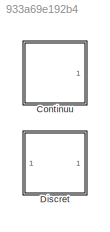
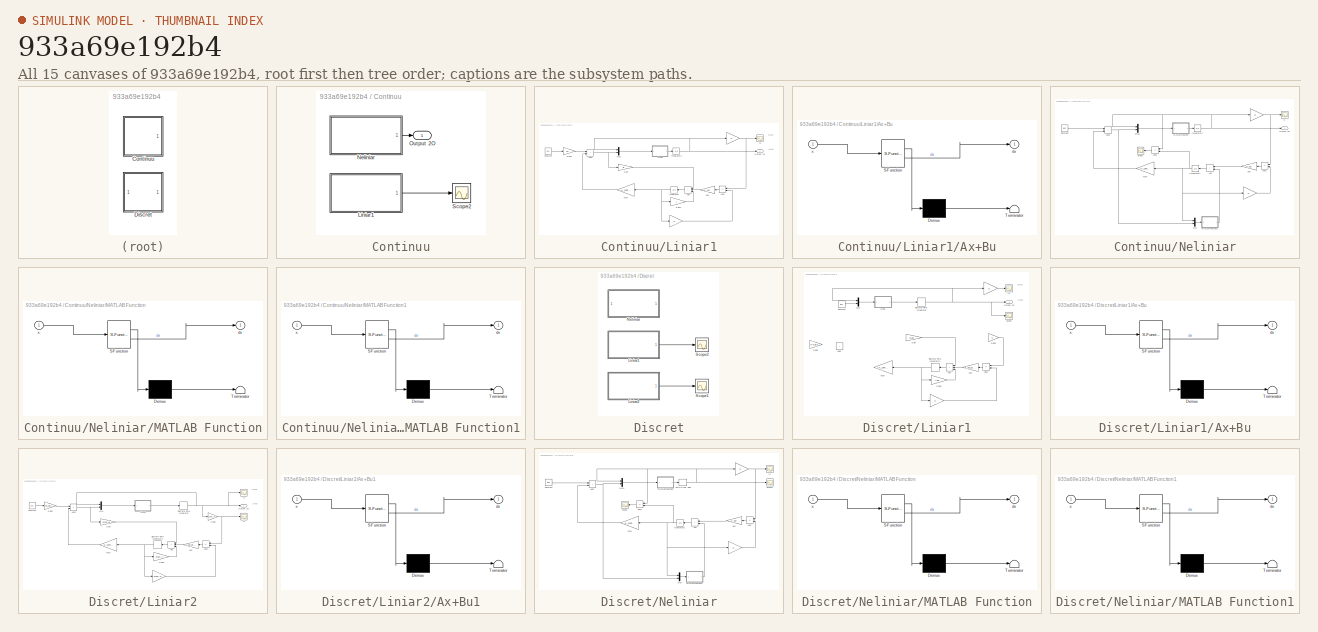
[diagram: thumbnail index - all 15 canvases of the model, root first then tree order]
MODEL slx_933a69e192b4
KIND model
CONFIG AbsTol = auto
CONFIG EnableMultiTasking = off
CONFIG FixedStep = auto
CONFIG MaxStep = auto
CONFIG MinStep = auto
CONFIG RelTol = 1e-3
CONFIG SampleTimeConstraint = Unconstrained
CONFIG SolverName = FixedStepAuto
CONFIG StartTime = 0.0
CONFIG StopTime = 10
BLOCK [SubSystem] Continuu
  Ports = [0, 1]
  RequestExecContextInheritance = off
BLOCK [SubSystem] Continuu/Liniar1
  Ports = [0, 1]
  RequestExecContextInheritance = off
BLOCK [Gain] Continuu/Liniar1/ 
  Gain = C
  Multiplication = Matrix(K*u) (u vector)
BLOCK [Gain] Continuu/Liniar1/  
  Gain = C
  Multiplication = Matrix(K*u) (u vector)
BLOCK [Sum] Continuu/Liniar1/Add
  IconShape = rectangular
  Inputs = +++
  Ports = [3, 1]
BLOCK [Sum] Continuu/Liniar1/Add1
  IconShape = rectangular
  Inputs = +-
  Ports = [2, 1]
BLOCK [Sum] Continuu/Liniar1/Add2
  IconShape = rectangular
  Ports = [2, 1]
BLOCK [SubSystem] Continuu/Liniar1/Ax+Bu
  ErrorFcn = Stateflow.Translate.translate
  PermitHierarchicalResolution = ExplicitOnly
  Ports = [1, 1]
  RequestExecContextInheritance = off
  SFBlockType = MATLAB Function
  TreatAsAtomicUnit = on
BLOCK [Demux] Continuu/Liniar1/Ax+Bu/ Demux 
  Outputs = 1
  Ports = [1, 1]
BLOCK [S-Function] Continuu/Liniar1/Ax+Bu/ SFunction 
  EnableBusSupport = on
  FunctionName = sf_sfun
  PortCounts = [1 2]
  Ports = [1, 2]
  SFcnIsStateOwnerBlock = off
  SFunctionDeploymentMode = off
  Tag = Stateflow S-Function 3
BLOCK [Terminator] Continuu/Liniar1/Ax+Bu/ Terminator 
BLOCK [Outport] Continuu/Liniar1/Ax+Bu/dx
BLOCK [Inport] Continuu/Liniar1/Ax+Bu/x
BLOCK [Constant] Continuu/Liniar1/Constant
  Value = [1,1]'
BLOCK [Gain] Continuu/Liniar1/Gain
  Gain = B
  Multiplication = Matrix(K*u) (u vector)
BLOCK [Gain] Continuu/Liniar1/Gain1
  Gain = Fx
  Multiplication = Matrix(K*u) (u vector)
BLOCK [Gain] Continuu/Liniar1/Gain3
  Gain = A
  Multiplication = Matrix(K*u) (u vector)
BLOCK [Integrator] Continuu/Liniar1/Integrator
  InitialCondition = [0,0,0,0]'
  Ports = [1, 1]
BLOCK [Integrator] Continuu/Liniar1/Integrator1
  InitialCondition = [0.1,0.5,0.25,-0.5]'
  Ports = [1, 1]
BLOCK [Gain] Continuu/Liniar1/Kcon
  Gain = -K_control
  Multiplication = Matrix(K*u) (u vector)
BLOCK [Gain] Continuu/Liniar1/Kes
  Gain = K_es'
  Multiplication = Matrix(K*u) (u vector)
BLOCK [Mux] Continuu/Liniar1/Mux
  DisplayOption = bar
  Inputs = 2
  Ports = [2, 1]
BLOCK [Outport] Continuu/Liniar1/Output 2O
BLOCK [Scope] Continuu/Liniar1/y1
  Floating = off
  NumInputPorts = 1
  Ports = [1]
  ScopeSpecificationString = Simulink.scopes.TimeScopeBlockCfg('CurrentConfiguration', extmgr.ConfigurationSet(extmgr.Configuration('Core','General UI',true),extmgr.Configuration('Core','Source UI',true),extmgr.Configuration('Sources','WiredSimulink',true,'DataLoggingVariableName','ScopeData1'),extmgr.Configuration('Visuals','Time Domain',true,'SerializedDisplays',{struct('MinYLimReal','-82.78247','MaxYLimReal','746.04226','Y...<+1451ch>
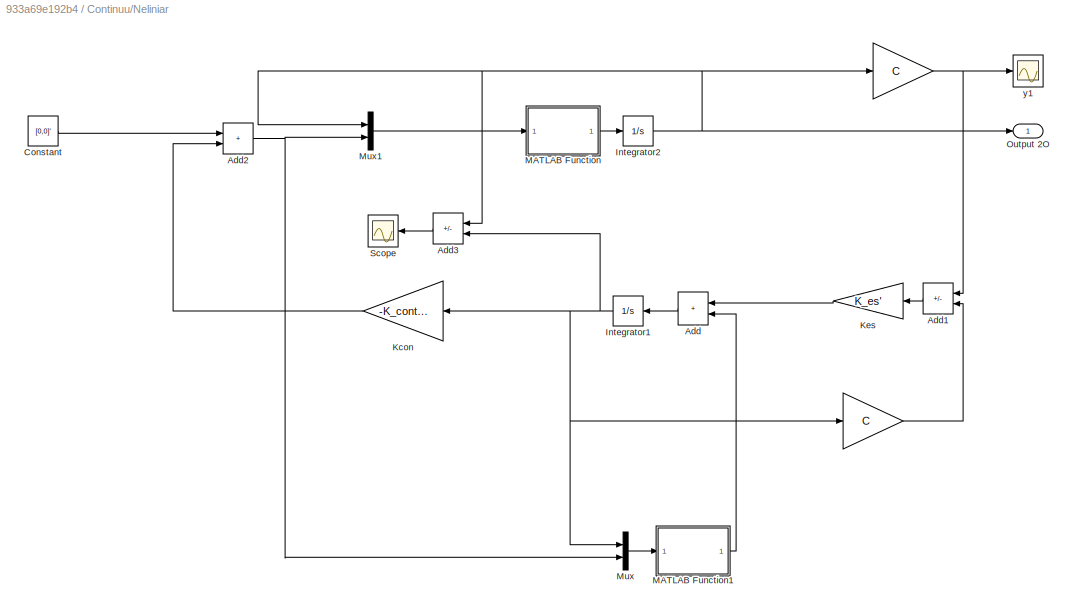
BLOCK [SubSystem] Continuu/Neliniar
  Ports = [0, 1]
  RequestExecContextInheritance = off
BLOCK [Gain] Continuu/Neliniar/ 
  Gain = C
  Multiplication = Matrix(K*u) (u vector)
BLOCK [Gain] Continuu/Neliniar/  
  Gain = C
  Multiplication = Matrix(K*u) (u vector)
BLOCK [Sum] Continuu/Neliniar/Add
  IconShape = rectangular
  Ports = [2, 1]
BLOCK [Sum] Continuu/Neliniar/Add1
  IconShape = rectangular
  Inputs = +-
  Ports = [2, 1]
BLOCK [Sum] Continuu/Neliniar/Add2
  IconShape = rectangular
  Ports = [2, 1]
BLOCK [Sum] Continuu/Neliniar/Add3
  IconShape = rectangular
  Inputs = +-
  Ports = [2, 1]
BLOCK [Constant] Continuu/Neliniar/Constant
  Value = [0,0]'
BLOCK [Integrator] Continuu/Neliniar/Integrator1
  InitialCondition = [0,0,0,0]'
  Ports = [1, 1]
BLOCK [Integrator] Continuu/Neliniar/Integrator2
  InitialCondition = [0.1,0.5,0.25,-0.5]'*1e-10
  Ports = [1, 1]
BLOCK [Gain] Continuu/Neliniar/Kcon
  Gain = -K_control
  Multiplication = Matrix(K*u) (u vector)
BLOCK [Gain] Continuu/Neliniar/Kes
  Gain = K_es'
  Multiplication = Matrix(K*u) (u vector)
BLOCK [SubSystem] Continuu/Neliniar/MATLAB Function
  ErrorFcn = Stateflow.Translate.translate
  PermitHierarchicalResolution = ExplicitOnly
  Ports = [1, 1]
  RequestExecContextInheritance = off
  SFBlockType = MATLAB Function
  TreatAsAtomicUnit = on
BLOCK [Demux] Continuu/Neliniar/MATLAB Function/ Demux 
  Outputs = 1
  Ports = [1, 1]
BLOCK [S-Function] Continuu/Neliniar/MATLAB Function/ SFunction 
  EnableBusSupport = on
  FunctionName = sf_sfun
  PortCounts = [1 2]
  Ports = [1, 2]
  SFcnIsStateOwnerBlock = off
  SFunctionDeploymentMode = off
  Tag = Stateflow S-Function 2
BLOCK [Terminator] Continuu/Neliniar/MATLAB Function/ Terminator 
BLOCK [Outport] Continuu/Neliniar/MATLAB Function/dx
BLOCK [Inport] Continuu/Neliniar/MATLAB Function/x
BLOCK [SubSystem] Continuu/Neliniar/MATLAB Function1
  ErrorFcn = Stateflow.Translate.translate
  PermitHierarchicalResolution = ExplicitOnly
  Ports = [1, 1]
  RequestExecContextInheritance = off
  SFBlockType = MATLAB Function
  TreatAsAtomicUnit = on
BLOCK [Demux] Continuu/Neliniar/MATLAB Function1/ Demux 
  Outputs = 1
  Ports = [1, 1]
BLOCK [S-Function] Continuu/Neliniar/MATLAB Function1/ SFunction 
  EnableBusSupport = on
  FunctionName = sf_sfun
  PortCounts = [1 2]
  Ports = [1, 2]
  SFcnIsStateOwnerBlock = off
  SFunctionDeploymentMode = off
  Tag = Stateflow S-Function 1
BLOCK [Terminator] Continuu/Neliniar/MATLAB Function1/ Terminator 
BLOCK [Outport] Continuu/Neliniar/MATLAB Function1/dx
BLOCK [Inport] Continuu/Neliniar/MATLAB Function1/x
BLOCK [Mux] Continuu/Neliniar/Mux
  DisplayOption = bar
  Inputs = 2
  Ports = [2, 1]
BLOCK [Mux] Continuu/Neliniar/Mux1
  DisplayOption = bar
  Inputs = 2
  Ports = [2, 1]
BLOCK [Outport] Continuu/Neliniar/Output 2O
BLOCK [Scope] Continuu/Neliniar/Scope
  Floating = off
  NumInputPorts = 1
  Ports = [1]
  ScopeSpecificationString = Simulink.scopes.TimeScopeBlockCfg('CurrentConfiguration', extmgr.ConfigurationSet(extmgr.Configuration('Core','General UI',true),extmgr.Configuration('Core','Source UI',true),extmgr.Configuration('Sources','WiredSimulink',true,'DataLoggingVariableName','ScopeData2'),extmgr.Configuration('Visuals','Time Domain',true,'SerializedDisplays',{struct('MinYLimReal','-0.000000014','MaxYLimReal','0.00000000...<+1453ch>
BLOCK [Scope] Continuu/Neliniar/y1
  Floating = off
  NumInputPorts = 1
  Ports = [1]
  ScopeSpecificationString = Simulink.scopes.TimeScopeBlockCfg('CurrentConfiguration', extmgr.ConfigurationSet(extmgr.Configuration('Core','General UI',true),extmgr.Configuration('Core','Source UI',true),extmgr.Configuration('Sources','WiredSimulink',true,'DataLoggingVariableName','ScopeData1'),extmgr.Configuration('Visuals','Time Domain',true,'SerializedDisplays',{struct('MinYLimReal','-0.000000008','MaxYLimReal','0.00000007...<+1475ch>
BLOCK [Outport] Continuu/Output 2O
BLOCK [Scope] Continuu/Scope2
  Floating = off
  NumInputPorts = 1
  Ports = [1]
  ScopeSpecificationString = Simulink.scopes.TimeScopeBlockCfg('CurrentConfiguration', extmgr.ConfigurationSet(extmgr.Configuration('Core','General UI',true),extmgr.Configuration('Core','Source UI',true),extmgr.Configuration('Sources','WiredSimulink',true,'DataLoggingVariableName','ScopeData2'),extmgr.Configuration('Visuals','Time Domain',true,'SerializedDisplays',{struct('MinYLimReal','-485.9879','MaxYLimReal','1798.11806','...<+1492ch>
BLOCK [SubSystem] Discret
  Ports = []
  RequestExecContextInheritance = off
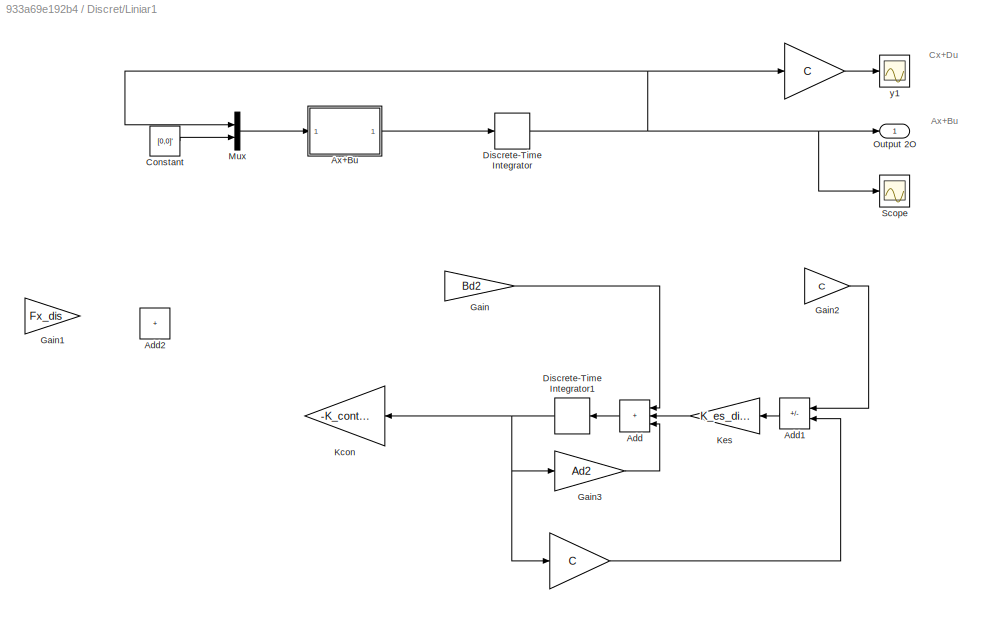
BLOCK [SubSystem] Discret/Liniar1
  Ports = [0, 1]
  RequestExecContextInheritance = off
BLOCK [Gain] Discret/Liniar1/ 
  Gain = C
  Multiplication = Matrix(K*u) (u vector)
BLOCK [Gain] Discret/Liniar1/  
  Gain = C
  Multiplication = Matrix(K*u) (u vector)
BLOCK [Sum] Discret/Liniar1/Add
  IconShape = rectangular
  Inputs = +++
  Ports = [3, 1]
BLOCK [Sum] Discret/Liniar1/Add1
  IconShape = rectangular
  Inputs = +-
  Ports = [2, 1]
BLOCK [Sum] Discret/Liniar1/Add2
  IconShape = rectangular
  Ports = [2, 1]
BLOCK [SubSystem] Discret/Liniar1/Ax+Bu
  ErrorFcn = Stateflow.Translate.translate
  PermitHierarchicalResolution = ExplicitOnly
  Ports = [1, 1]
  RequestExecContextInheritance = off
  SFBlockType = MATLAB Function
  TreatAsAtomicUnit = on
BLOCK [Demux] Discret/Liniar1/Ax+Bu/ Demux 
  Outputs = 1
  Ports = [1, 1]
BLOCK [S-Function] Discret/Liniar1/Ax+Bu/ SFunction 
  EnableBusSupport = on
  FunctionName = sf_sfun
  PortCounts = [1 2]
  Ports = [1, 2]
  SFcnIsStateOwnerBlock = off
  SFunctionDeploymentMode = off
  Tag = Stateflow S-Function 4
BLOCK [Terminator] Discret/Liniar1/Ax+Bu/ Terminator 
BLOCK [Outport] Discret/Liniar1/Ax+Bu/dx
BLOCK [Inport] Discret/Liniar1/Ax+Bu/x
BLOCK [Constant] Discret/Liniar1/Constant
  SampleTime = Te
  Value = [0,0]'
BLOCK [DiscreteIntegrator] Discret/Liniar1/Discrete-Time Integrator
  ICPrevOutput = DiscIntNeverNeededParam
  ICPrevScaledInput = DiscIntNeverNeededParam
  InitialCondition = [1 0.5 -0.2 -1]'
  InitialConditionSetting = Auto
  IntegratorMethod = Integration: Backward Euler
  Ports = [1, 1]
  SampleTime = Te
BLOCK [DiscreteIntegrator] Discret/Liniar1/Discrete-Time Integrator1
  ICPrevOutput = DiscIntNeverNeededParam
  ICPrevScaledInput = DiscIntNeverNeededParam
  InitialCondition = [0 0 0 0]'
  InitialConditionSetting = Auto
  NameLocation = top
  Ports = [1, 1]
  SampleTime = Te
BLOCK [Gain] Discret/Liniar1/Gain
  Gain = Bd2
  Multiplication = Matrix(K*u) (u vector)
BLOCK [Gain] Discret/Liniar1/Gain1
  Gain = Fx_dis
  Multiplication = Matrix(K*u) (u vector)
BLOCK [Gain] Discret/Liniar1/Gain2
  Gain = C
  Multiplication = Matrix(K*u) (u vector)
BLOCK [Gain] Discret/Liniar1/Gain3
  Gain = Ad2
  Multiplication = Matrix(K*u) (u vector)
BLOCK [Gain] Discret/Liniar1/Kcon
  Gain = -K_control_dis2
  Multiplication = Matrix(K*u) (u vector)
BLOCK [Gain] Discret/Liniar1/Kes
  Gain = K_es_dis2'
  Multiplication = Matrix(K*u) (u vector)
BLOCK [Mux] Discret/Liniar1/Mux
  DisplayOption = bar
  Inputs = 2
  Ports = [2, 1]
BLOCK [Outport] Discret/Liniar1/Output 2O
BLOCK [Scope] Discret/Liniar1/Scope
  Floating = off
  NumInputPorts = 1
  Ports = [1]
  ScopeSpecificationString = Simulink.scopes.TimeScopeBlockCfg('CurrentConfiguration', extmgr.ConfigurationSet(extmgr.Configuration('Core','General UI',true),extmgr.Configuration('Core','Source UI',true),extmgr.Configuration('Sources','WiredSimulink',true,'DataLoggingVariableName','ScopeData1'),extmgr.Configuration('Visuals','Time Domain',true,'SerializedDisplays',{struct('MinYLimReal','-2667.74893','MaxYLimReal','5147.21872'...<+1565ch>
BLOCK [Scope] Discret/Liniar1/y1
  Floating = off
  NumInputPorts = 1
  Ports = [1]
  ScopeSpecificationString = Simulink.scopes.TimeScopeBlockCfg('CurrentConfiguration', extmgr.ConfigurationSet(extmgr.Configuration('Core','General UI',true),extmgr.Configuration('Core','Source UI',true),extmgr.Configuration('Sources','WiredSimulink',true,'DataLoggingVariableName','ScopeData1'),extmgr.Configuration('Visuals','Time Domain',true,'SerializedDisplays',{struct('MinYLimReal','-18.63753','MaxYLimReal','60.95477','YL...<+1450ch>
BLOCK [SubSystem] Discret/Liniar2
  Ports = [0, 1]
  RequestExecContextInheritance = off
BLOCK [Gain] Discret/Liniar2/ 
  Gain = sysD.C
  Multiplication = Matrix(K*u) (u vector)
BLOCK [Sum] Discret/Liniar2/Add
  IconShape = rectangular
  Inputs = +++
  Ports = [3, 1]
BLOCK [Sum] Discret/Liniar2/Add1
  IconShape = rectangular
  Inputs = +-
  Ports = [2, 1]
BLOCK [Sum] Discret/Liniar2/Add3
  IconShape = rectangular
  Ports = [2, 1]
BLOCK [SubSystem] Discret/Liniar2/Ax+Bu1
  ErrorFcn = Stateflow.Translate.translate
  PermitHierarchicalResolution = ExplicitOnly
  Ports = [1, 1]
  RequestExecContextInheritance = off
  SFBlockType = MATLAB Function
  TreatAsAtomicUnit = on
BLOCK [Demux] Discret/Liniar2/Ax+Bu1/ Demux 
  Outputs = 1
  Ports = [1, 1]
BLOCK [S-Function] Discret/Liniar2/Ax+Bu1/ SFunction 
  EnableBusSupport = on
  FunctionName = sf_sfun
  PortCounts = [1 2]
  Ports = [1, 2]
  SFcnIsStateOwnerBlock = off
  SFunctionDeploymentMode = off
  Tag = Stateflow S-Function 8
BLOCK [Terminator] Discret/Liniar2/Ax+Bu1/ Terminator 
BLOCK [Outport] Discret/Liniar2/Ax+Bu1/dx
BLOCK [Inport] Discret/Liniar2/Ax+Bu1/x
BLOCK [Constant] Discret/Liniar2/Constant
  SampleTime = Te
  Value = [1,1]'
BLOCK [DiscreteIntegrator] Discret/Liniar2/Discrete-Time Integrator
  ICPrevOutput = DiscIntNeverNeededParam
  ICPrevScaledInput = DiscIntNeverNeededParam
  InitialCondition = [0.3 0.1 -0.1 -0.2]'
  InitialConditionSetting = Auto
  Ports = [1, 1]
  SampleTime = Te
BLOCK [DiscreteIntegrator] Discret/Liniar2/Discrete-Time Integrator1
  ICPrevOutput = DiscIntNeverNeededParam
  ICPrevScaledInput = DiscIntNeverNeededParam
  InitialCondition = [0 0 0 0]'
  InitialConditionSetting = Auto
  NameLocation = top
  Ports = [1, 1]
  SampleTime = Te
BLOCK [Gain] Discret/Liniar2/Gain
  Gain = sysD.B
  Multiplication = Matrix(K*u) (u vector)
BLOCK [Gain] Discret/Liniar2/Gain1
  Gain = Fx_dis
  Multiplication = Matrix(K*u) (u vector)
BLOCK [Gain] Discret/Liniar2/Gain2
  Gain = sysD.C
  Multiplication = Matrix(K*u) (u vector)
BLOCK [Gain] Discret/Liniar2/Gain3
  Gain = sysD.A
  Multiplication = Matrix(K*u) (u vector)
BLOCK [Gain] Discret/Liniar2/Kcon
  Gain = -K_control_dis
  Multiplication = Matrix(K*u) (u vector)
BLOCK [Gain] Discret/Liniar2/Kes
  Gain = K_es_dis'
  Multiplication = Matrix(K*u) (u vector)
BLOCK [Mux] Discret/Liniar2/Mux
  DisplayOption = bar
  Inputs = 2
  Ports = [2, 1]
BLOCK [Outport] Discret/Liniar2/Output 2O
BLOCK [Scope] Discret/Liniar2/y1
  Floating = off
  NumInputPorts = 1
  Ports = [1]
  ScopeSpecificationString = Simulink.scopes.TimeScopeBlockCfg('CurrentConfiguration', extmgr.ConfigurationSet(extmgr.Configuration('Core','General UI',true),extmgr.Configuration('Core','Source UI',true),extmgr.Configuration('Sources','WiredSimulink',true,'DataLoggingVariableName','ScopeData1'),extmgr.Configuration('Visuals','Time Domain',true,'SerializedDisplays',{struct('MinYLimReal','-207.85808','MaxYLimReal','1868.72272',...<+1562ch>
BLOCK [Scope] Discret/Liniar2/y2
  Floating = off
  NumInputPorts = 1
  Ports = [1]
  ScopeSpecificationString = Simulink.scopes.TimeScopeBlockCfg('CurrentConfiguration', extmgr.ConfigurationSet(extmgr.Configuration('Core','General UI',true),extmgr.Configuration('Core','Source UI',true),extmgr.Configuration('Sources','WiredSimulink',true,'DataLoggingVariableName','ScopeData3'),extmgr.Configuration('Visuals','Time Domain',true,'SerializedDisplays',{struct('MinYLimReal','-0.54132','MaxYLimReal','3.76219','YLab...<+1447ch>
BLOCK [SubSystem] Discret/Neliniar
  Ports = []
  RequestExecContextInheritance = off
BLOCK [Gain] Discret/Neliniar/ 
  Gain = C
  Multiplication = Matrix(K*u) (u vector)
BLOCK [Gain] Discret/Neliniar/  
  Gain = C
  Multiplication = Matrix(K*u) (u vector)
BLOCK [Sum] Discret/Neliniar/Add
  IconShape = rectangular
  Ports = [2, 1]
BLOCK [Sum] Discret/Neliniar/Add1
  IconShape = rectangular
  Inputs = +-
  Ports = [2, 1]
BLOCK [Sum] Discret/Neliniar/Add2
  IconShape = rectangular
  Ports = [2, 1]
BLOCK [Sum] Discret/Neliniar/Add3
  IconShape = rectangular
  Inputs = +-
  Ports = [2, 1]
BLOCK [Constant] Discret/Neliniar/Constant
  Value = [0,0]'
BLOCK [Integrator] Discret/Neliniar/Integrator1
  InitialCondition = [0,0,0,0]'
  Ports = [1, 1]
BLOCK [Gain] Discret/Neliniar/Kcon
  Gain = -K_control
  Multiplication = Matrix(K*u) (u vector)
BLOCK [Gain] Discret/Neliniar/Kes
  Gain = K_es'
  Multiplication = Matrix(K*u) (u vector)
BLOCK [SubSystem] Discret/Neliniar/MATLAB Function
  ErrorFcn = Stateflow.Translate.translate
  PermitHierarchicalResolution = ExplicitOnly
  Ports = [1, 1]
  RequestExecContextInheritance = off
  SFBlockType = MATLAB Function
  TreatAsAtomicUnit = on
BLOCK [Demux] Discret/Neliniar/MATLAB Function/ Demux 
  Outputs = 1
  Ports = [1, 1]
BLOCK [S-Function] Discret/Neliniar/MATLAB Function/ SFunction 
  EnableBusSupport = on
  FunctionName = sf_sfun
  PortCounts = [1 2]
  Ports = [1, 2]
  SFcnIsStateOwnerBlock = off
  SFunctionDeploymentMode = off
  Tag = Stateflow S-Function 5
BLOCK [Terminator] Discret/Neliniar/MATLAB Function/ Terminator 
BLOCK [Outport] Discret/Neliniar/MATLAB Function/dx
BLOCK [Inport] Discret/Neliniar/MATLAB Function/x
BLOCK [SubSystem] Discret/Neliniar/MATLAB Function1
  ErrorFcn = Stateflow.Translate.translate
  PermitHierarchicalResolution = ExplicitOnly
  Ports = [1, 1]
  RequestExecContextInheritance = off
  SFBlockType = MATLAB Function
  TreatAsAtomicUnit = on
BLOCK [Demux] Discret/Neliniar/MATLAB Function1/ Demux 
  Outputs = 1
  Ports = [1, 1]
BLOCK [S-Function] Discret/Neliniar/MATLAB Function1/ SFunction 
  EnableBusSupport = on
  FunctionName = sf_sfun
  PortCounts = [1 2]
  Ports = [1, 2]
  SFcnIsStateOwnerBlock = off
  SFunctionDeploymentMode = off
  Tag = Stateflow S-Function 6
BLOCK [Terminator] Discret/Neliniar/MATLAB Function1/ Terminator 
BLOCK [Outport] Discret/Neliniar/MATLAB Function1/dx
BLOCK [Inport] Discret/Neliniar/MATLAB Function1/x
BLOCK [Mux] Discret/Neliniar/Mux
  DisplayOption = bar
  Inputs = 2
  Ports = [2, 1]
BLOCK [Mux] Discret/Neliniar/Mux1
  DisplayOption = bar
  Inputs = 2
  Ports = [2, 1]
BLOCK [Scope] Discret/Neliniar/Scope
  Floating = off
  NumInputPorts = 1
  Ports = [1]
  ScopeSpecificationString = Simulink.scopes.TimeScopeBlockCfg('CurrentConfiguration', extmgr.ConfigurationSet(extmgr.Configuration('Core','General UI',true),extmgr.Configuration('Core','Source UI',true),extmgr.Configuration('Sources','WiredSimulink',true,'DataLoggingVariableName','ScopeData2'),extmgr.Configuration('Visuals','Time Domain',true,'SerializedDisplays',{struct('MinYLimReal','-0.000000014','MaxYLimReal','0.00000000...<+1453ch>
BLOCK [Scope] Discret/Neliniar/Scope1
  Floating = off
  NumInputPorts = 1
  Ports = [1]
  ScopeSpecificationString = Simulink.scopes.TimeScopeBlockCfg('CurrentConfiguration', extmgr.ConfigurationSet(extmgr.Configuration('Core','General UI',true),extmgr.Configuration('Core','Source UI',true),extmgr.Configuration('Sources','WiredSimulink',true,'DataLoggingVariableName','ScopeData1','DataLoggingSaveFormat','Array','DataLoggingLimitDataPoints',true,'DataLoggingDecimation','1'),extmgr.Configuration('Visuals','Time Do...<+868ch>
BLOCK [ZeroOrderHold] Discret/Neliniar/Zero-Order Hold
  SampleTime = -1
BLOCK [Scope] Discret/Neliniar/y1
  Floating = off
  NumInputPorts = 1
  Ports = [1]
  ScopeSpecificationString = Simulink.scopes.TimeScopeBlockCfg('CurrentConfiguration', extmgr.ConfigurationSet(extmgr.Configuration('Core','General UI',true),extmgr.Configuration('Core','Source UI',true),extmgr.Configuration('Sources','WiredSimulink',true,'DataLoggingVariableName','ScopeData1'),extmgr.Configuration('Visuals','Time Domain',true,'SerializedDisplays',{struct('MinYLimReal','-0.000000008','MaxYLimReal','0.00000007...<+1475ch>
BLOCK [Scope] Discret/Scope1
  Floating = off
  NumInputPorts = 1
  Ports = [1]
  ScopeSpecificationString = Simulink.scopes.TimeScopeBlockCfg('CurrentConfiguration', extmgr.ConfigurationSet(extmgr.Configuration('Core','General UI',true),extmgr.Configuration('Core','Source UI',true),extmgr.Configuration('Sources','WiredSimulink',true,'DataLoggingVariableName','ScopeData2'),extmgr.Configuration('Visuals','Time Domain',true,'SerializedDisplays',{struct('MinYLimReal','-0.36328','MaxYLimReal','0.37388','YLab...<+1475ch>
BLOCK [Scope] Discret/Scope2
  Floating = off
  NumInputPorts = 1
  Ports = [1]
  ScopeSpecificationString = Simulink.scopes.TimeScopeBlockCfg('CurrentConfiguration', extmgr.ConfigurationSet(extmgr.Configuration('Core','General UI',true),extmgr.Configuration('Core','Source UI',true),extmgr.Configuration('Sources','WiredSimulink',true,'DataLoggingVariableName','ScopeData2'),extmgr.Configuration('Visuals','Time Domain',true,'SerializedDisplays',{struct('MinYLimReal','-0.60328','MaxYLimReal','1.17988','YLab...<+1475ch>
ANNOTATION Continuu/Liniar1: Ax+Bu
ANNOTATION Continuu/Liniar1: Cx+Du
ANNOTATION Discret/Liniar1: Ax+Bu
ANNOTATION Discret/Liniar1: Cx+Du
ANNOTATION Discret/Liniar2: Ax+Bu
ANNOTATION Discret/Liniar2: Cx+Du
NET Continuu/Liniar1/  :1 -> Continuu/Liniar1/Add1:1, Continuu/Liniar1/y1:1
LINE Continuu/Liniar1/ :1 -> Continuu/Liniar1/Add1:2
LINE Continuu/Liniar1/Add1:1 -> Continuu/Liniar1/Kes:1
NET Continuu/Liniar1/Add2:1 -> Continuu/Liniar1/Gain:1, Continuu/Liniar1/Mux:2
LINE Continuu/Liniar1/Add:1 -> Continuu/Liniar1/Integrator:1
LINE Continuu/Liniar1/Ax+Bu:1 -> Continuu/Liniar1/Integrator1:1
LINE Continuu/Liniar1/Constant:1 -> Continuu/Liniar1/Gain1:1
LINE Continuu/Liniar1/Gain1:1 -> Continuu/Liniar1/Add2:1
LINE Continuu/Liniar1/Gain3:1 -> Continuu/Liniar1/Add:3
LINE Continuu/Liniar1/Gain:1 -> Continuu/Liniar1/Add:1
NET Continuu/Liniar1/Integrator1:1 -> Continuu/Liniar1/  :1, Continuu/Liniar1/Mux:1, Continuu/Liniar1/Output 2O:1
NET Continuu/Liniar1/Integrator:1 -> Continuu/Liniar1/ :1, Continuu/Liniar1/Gain3:1, Continuu/Liniar1/Kcon:1
LINE Continuu/Liniar1/Kcon:1 -> Continuu/Liniar1/Add2:2
LINE Continuu/Liniar1/Kes:1 -> Continuu/Liniar1/Add:2
LINE Continuu/Liniar1/Mux:1 -> Continuu/Liniar1/Ax+Bu:1
LINE Continuu/Liniar1:1 -> Continuu/Scope2:1
NET Continuu/Neliniar/  :1 -> Continuu/Neliniar/Add1:1, Continuu/Neliniar/y1:1
LINE Continuu/Neliniar/ :1 -> Continuu/Neliniar/Add1:2
LINE Continuu/Neliniar/Add1:1 -> Continuu/Neliniar/Kes:1
NET Continuu/Neliniar/Add2:1 -> Continuu/Neliniar/Mux1:2, Continuu/Neliniar/Mux:2
LINE Continuu/Neliniar/Add3:1 -> Continuu/Neliniar/Scope:1
LINE Continuu/Neliniar/Add:1 -> Continuu/Neliniar/Integrator1:1
LINE Continuu/Neliniar/Constant:1 -> Continuu/Neliniar/Add2:1
NET Continuu/Neliniar/Integrator1:1 -> Continuu/Neliniar/ :1, Continuu/Neliniar/Add3:2, Continuu/Neliniar/Kcon:1, Continuu/Neliniar/Mux:1
NET Continuu/Neliniar/Integrator2:1 -> Continuu/Neliniar/  :1, Continuu/Neliniar/Add3:1, Continuu/Neliniar/Mux1:1, Continuu/Neliniar/Output 2O:1
LINE Continuu/Neliniar/Kcon:1 -> Continuu/Neliniar/Add2:2
LINE Continuu/Neliniar/Kes:1 -> Continuu/Neliniar/Add:1
LINE Continuu/Neliniar/MATLAB Function1:1 -> Continuu/Neliniar/Add:2
LINE Continuu/Neliniar/MATLAB Function:1 -> Continuu/Neliniar/Integrator2:1
LINE Continuu/Neliniar/Mux1:1 -> Continuu/Neliniar/MATLAB Function:1
LINE Continuu/Neliniar/Mux:1 -> Continuu/Neliniar/MATLAB Function1:1
LINE Continuu/Neliniar:1 -> Continuu/Output 2O:1
LINE Discret/Liniar1/  :1 -> Discret/Liniar1/y1:1
LINE Discret/Liniar1/ :1 -> Discret/Liniar1/Add1:2
LINE Discret/Liniar1/Add1:1 -> Discret/Liniar1/Kes:1
LINE Discret/Liniar1/Add:1 -> Discret/Liniar1/Discrete-Time Integrator1:1
LINE Discret/Liniar1/Ax+Bu:1 -> Discret/Liniar1/Discrete-Time Integrator:1
LINE Discret/Liniar1/Constant:1 -> Discret/Liniar1/Mux:2
NET Discret/Liniar1/Discrete-Time Integrator1:1 -> Discret/Liniar1/ :1, Discret/Liniar1/Gain3:1, Discret/Liniar1/Kcon:1
NET Discret/Liniar1/Discrete-Time Integrator:1 -> Discret/Liniar1/  :1, Discret/Liniar1/Mux:1, Discret/Liniar1/Output 2O:1, Discret/Liniar1/Scope:1
LINE Discret/Liniar1/Gain2:1 -> Discret/Liniar1/Add1:1
LINE Discret/Liniar1/Gain3:1 -> Discret/Liniar1/Add:3
LINE Discret/Liniar1/Gain:1 -> Discret/Liniar1/Add:1
LINE Discret/Liniar1/Kes:1 -> Discret/Liniar1/Add:2
LINE Discret/Liniar1/Mux:1 -> Discret/Liniar1/Ax+Bu:1
LINE Discret/Liniar1:1 -> Discret/Scope2:1
LINE Discret/Liniar2/ :1 -> Discret/Liniar2/Add1:2
LINE Discret/Liniar2/Add1:1 -> Discret/Liniar2/Kes:1
NET Discret/Liniar2/Add3:1 -> Discret/Liniar2/Gain:1, Discret/Liniar2/Mux:2
LINE Discret/Liniar2/Add:1 -> Discret/Liniar2/Discrete-Time Integrator1:1
LINE Discret/Liniar2/Ax+Bu1:1 -> Discret/Liniar2/Discrete-Time Integrator:1
LINE Discret/Liniar2/Constant:1 -> Discret/Liniar2/Gain1:1
NET Discret/Liniar2/Discrete-Time Integrator1:1 -> Discret/Liniar2/ :1, Discret/Liniar2/Gain3:1, Discret/Liniar2/Kcon:1
NET Discret/Liniar2/Discrete-Time Integrator:1 -> Discret/Liniar2/Gain2:1, Discret/Liniar2/Mux:1, Discret/Liniar2/Output 2O:1, Discret/Liniar2/y1:1
LINE Discret/Liniar2/Gain1:1 -> Discret/Liniar2/Add3:1
NET Discret/Liniar2/Gain2:1 -> Discret/Liniar2/Add1:1, Discret/Liniar2/y2:1
LINE Discret/Liniar2/Gain3:1 -> Discret/Liniar2/Add:3
LINE Discret/Liniar2/Gain:1 -> Discret/Liniar2/Add:1
LINE Discret/Liniar2/Kcon:1 -> Discret/Liniar2/Add3:2
LINE Discret/Liniar2/Kes:1 -> Discret/Liniar2/Add:2
LINE Discret/Liniar2/Mux:1 -> Discret/Liniar2/Ax+Bu1:1
LINE Discret/Liniar2:1 -> Discret/Scope1:1
NET Discret/Neliniar/  :1 -> Discret/Neliniar/Add1:1, Discret/Neliniar/y1:1
LINE Discret/Neliniar/ :1 -> Discret/Neliniar/Add1:2
LINE Discret/Neliniar/Add1:1 -> Discret/Neliniar/Kes:1
NET Discret/Neliniar/Add2:1 -> Discret/Neliniar/Mux1:2, Discret/Neliniar/Mux:2
LINE Discret/Neliniar/Add3:1 -> Discret/Neliniar/Scope:1
LINE Discret/Neliniar/Add:1 -> Discret/Neliniar/Integrator1:1
LINE Discret/Neliniar/Constant:1 -> Discret/Neliniar/Add2:1
NET Discret/Neliniar/Integrator1:1 -> Discret/Neliniar/ :1, Discret/Neliniar/Add3:2, Discret/Neliniar/Kcon:1, Discret/Neliniar/Mux:1
LINE Discret/Neliniar/Kcon:1 -> Discret/Neliniar/Add2:2
LINE Discret/Neliniar/Kes:1 -> Discret/Neliniar/Add:1
LINE Discret/Neliniar/MATLAB Function1:1 -> Discret/Neliniar/Add:2
LINE Discret/Neliniar/MATLAB Function:1 -> Discret/Neliniar/Zero-Order Hold:1
LINE Discret/Neliniar/Mux1:1 -> Discret/Neliniar/MATLAB Function:1
LINE Discret/Neliniar/Mux:1 -> Discret/Neliniar/MATLAB Function1:1
NET Discret/Neliniar/Zero-Order Hold:1 -> Discret/Neliniar/  :1, Discret/Neliniar/Add3:1, Discret/Neliniar/Mux1:1, Discret/Neliniar/Scope1:1
note: NET lines group one-source signal fan-out (src -> all destinations, sorted); 1:1 wires keep LINE
CHART Continuu/Neliniar/MATLAB Function states=1 transitions=1
  STATE_LABEL 'eML_blk_kernel()'
  STATE_LABEL "SCRIPT:\nfunction dx = fcn(x)\nR = 2e6  \nL = 1e4 \nm = 0.1\nK = 10 \nD = 10 \nepsilon = 10e-6 * 8.854 \nA = 2* 10e-2 \nalpha = epsilon * A \nbeta = 0.005 \n% x(5) = E\n% x(6) = Fext;\ndx = [x(2),...\n     (x(6)-D*x(2) - K*x(1) - x(3)^2/(2*alpha))/m,...\n      x(4),...\n     (x(5)-R*x(4)-x(1)*x(3)/alpha)/L]';\n \n"  <repeated x4 — deduplicated; at blocks: MATLAB Function, MATLAB Function1>
CHART Continuu/Liniar1/Ax+Bu states=1 transitions=1
  STATE_LABEL 'eML_blk_kernel()'
  STATE_LABEL "SCRIPT:\nfunction dx = fcn(x)\nR = 2e6  \nL = 1e4 \nm = 0.1\nK = 10 \nD = 10 \nepsilon = 10e-6 * 8.854 \nA = 2* 10e-2 \nalpha = epsilon * A \nbeta = 0.005 \n% x(5) = E\n% x(6) = Fext;\ndx = [x(2),...\n     (x(6)-D*x(2) - K*x(1))/m,...\n      x(4),...\n     (x(5)-R*x(4))/L]';\nend\n \n"
CHART Discret/Liniar1/Ax+Bu states=1 transitions=1
  STATE_LABEL 'eML_blk_kernel()'
  STATE_LABEL "SCRIPT:\nfunction dx = fcn(x)\n% R = 2e6  \n% L = 1e4 \n% m = 0.1\n% K = 10 \n% D = 10 \n% epsilon = 10e-6 * 8.854 \n% A = 2* 10e-2 \n% alpha = epsilon * A \n% beta = 0.005 \n% x(5) = E\n% x(6) = Fext;\ndx = [x(1) + 0.0005 *x(2),...\n     -0.0500 *x(1)+0.9500*x(2)+ 0.005*x(6),...\n     x(3)+0.0005*x(4),...\n     0.9*x(4)+5e-08*x(5)]';\nend\n \n"
CHART Discret/Neliniar/MATLAB Function states=1 transitions=1
  STATE_LABEL 'eML_blk_kernel()'
CHART Discret/Neliniar/MATLAB Function1 states=1 transitions=1
  STATE_LABEL 'eML_blk_kernel()'
CHART Discret/Liniar2/Ax+Bu1 states=1 transitions=1
  STATE_LABEL 'eML_blk_kernel()'
  STATE_LABEL 'SCRIPT:\nfunction dx = fcn(x)\nR = 2e6  \nL = 1e4 \nm = 0.1\nK = 10 \nD = 10 \nepsilon = 10e-6 * 8.854 \nA = 2* 10e-2 \nalpha = epsilon * A \nbeta = 0.005 \n% x(5) = E\n% x(6) = Fext;\ndx = [x(1)+4.877037229727535e-04*x(2)+ 1.229421947987911e-06*x(6),...\n     -0.048770372297275*x(1)+0.951217333483245*x(2)+ 0.004877037229728*x(6),...\n      x(3)+4.758129098202021e-04*x(4)+ 1.209354508989893e-11*x(5),...\n     0.9...<+58ch>'
CHART Continuu/Neliniar/MATLAB Function1 states=1 transitions=1
  STATE_LABEL 'eML_blk_kernel()'
CHART  states=0 transitions=0
CHART  states=0 transitions=0
CHART  states=0 transitions=0
CHART  states=0 transitions=0
CHART  states=0 transitions=0
CHART  states=0 transitions=0
CHART  states=0 transitions=0
